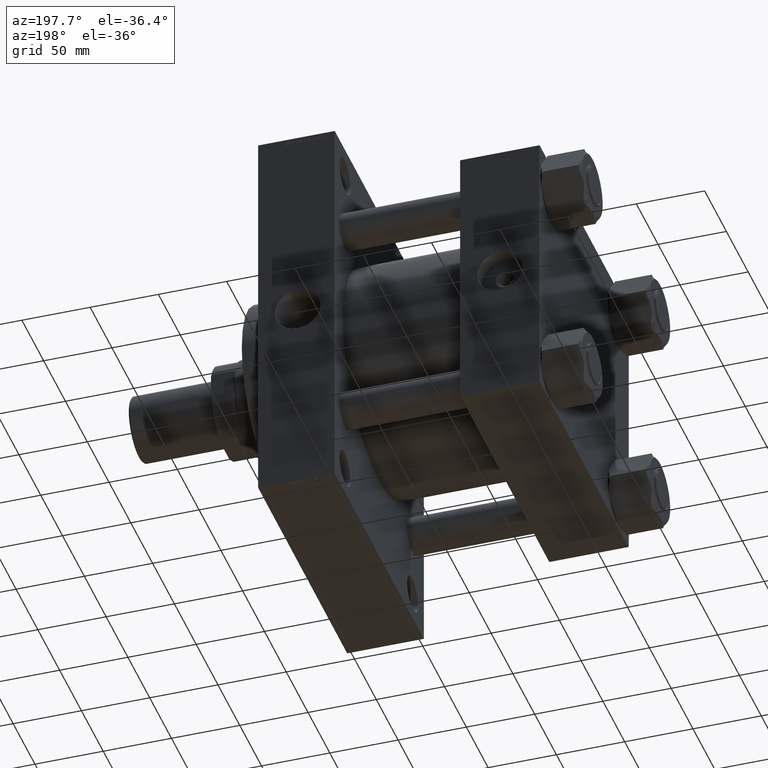
[diagram: clean part render]
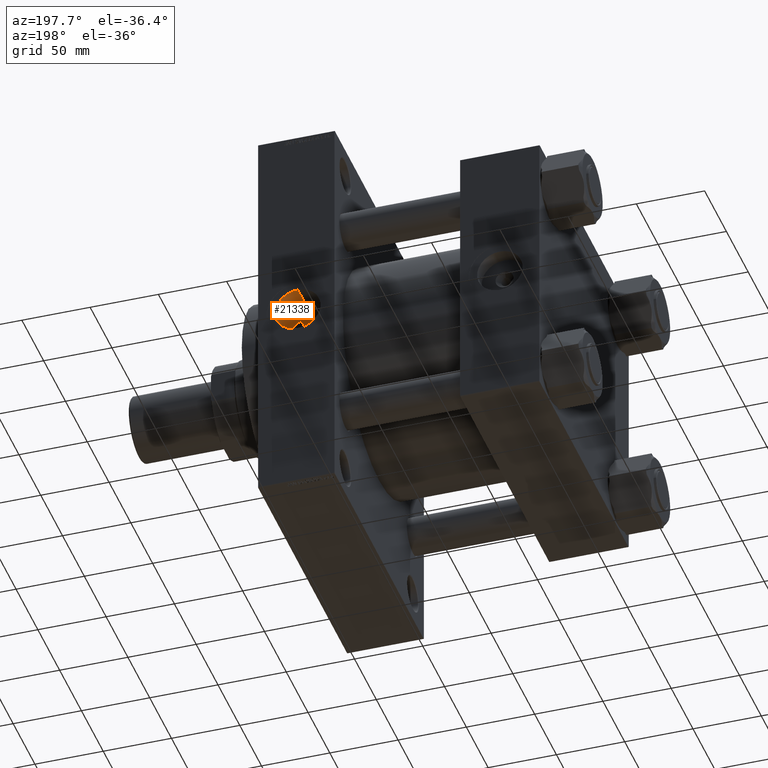
[diagram: same view with one face highlighted and labeled with its STEP entity id]
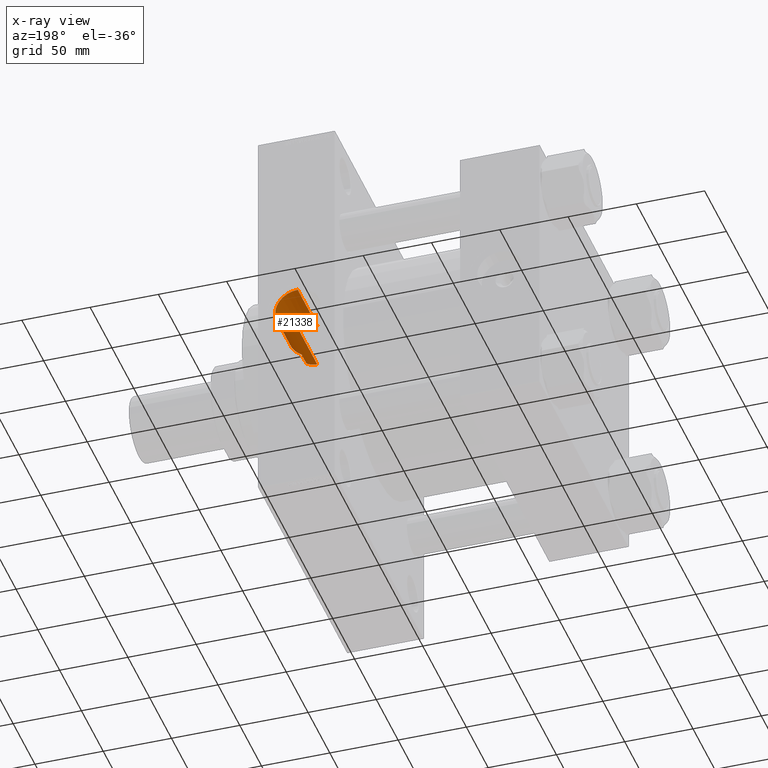
[diagram: x-ray of the same camera — body ghosted, the highlighted face saturated]
A machine part, auxiliary view. The second image highlights one B-rep face of the part: STEP entity #21338.
The next image is the same camera in x-ray: the body ghosted, the highlighted face saturated — about 2% of this face is hidden behind the body in this view.
In plain terms, the highlighted cylindrical surface (edge-blend (fillet) strip) has radius 16.62 mm, axis along (0, 1, 0).
Its self-contained STEP definition (entity closure, byte-faithful):
#319 = ORIENTED_EDGE ( 'NONE', *, *, #1924, .T. ) ;
#547 = DIRECTION ( 'NONE',  ( 0.000000000000000000, -1.000000000000000000, 0.000000000000000000 ) ) ;
#590 = VERTEX_POINT ( 'NONE', #22818 ) ;
#724 = CARTESIAN_POINT ( 'NONE',  ( 178.3491862534768018, 57.66699977446624104, 16.56857246349879276 ) ) ;
#1049 = DIRECTION ( 'NONE',  ( 0.000000000000000000, 0.000000000000000000, 1.000000000000000000 ) ) ;
#1202 = CARTESIAN_POINT ( 'NONE',  ( 177.0000000000000000, 102.2999999999999972, 16.62000000000000810 ) ) ;
#1924 = EDGE_CURVE ( 'NONE', #590, #30641, #34573, .T. ) ;
#2053 = CARTESIAN_POINT ( 'NONE',  ( 183.5465833610245454, 58.01063976927609644, -15.33575315849308041 ) ) ;
#2463 = EDGE_CURVE ( 'NONE', #2753, #13559, #42770, .T. ) ;
#2533 = CARTESIAN_POINT ( 'NONE',  ( 184.7399999999999807, 58.16943527317416596, -14.70771226261924092 ) ) ;
#2655 = VERTEX_POINT ( 'NONE', #26935 ) ;
#2753 = VERTEX_POINT ( 'NONE', #24247 ) ;
#3258 = CARTESIAN_POINT ( 'NONE',  ( 177.6692961842092870, 57.65219510131421998, -16.62000000000000455 ) ) ;
#3891 = EDGE_CURVE ( 'NONE', #30641, #13559, #41473, .T. ) ;
#3935 = B_SPLINE_CURVE_WITH_KNOTS ( 'NONE', 3,
 ( #2533, #2053, #38824, #13743, #24482, #28607, #10090, #44392, #3258, #10575 ),
 .UNSPECIFIED., .F., .F.,
 ( 4, 2, 2, 2, 4 ),
 ( 0.000000000000000000, 0.004017466377352936144, 0.005021832971691148929, 0.006026199566029361715, 0.008034932754705785551 ),
 .UNSPECIFIED. ) ;
#3964 = ORIENTED_EDGE ( 'NONE', *, *, #10623, .F. ) ;
#4366 = CARTESIAN_POINT ( 'NONE',  ( 177.0000000000000000, 102.2999999999999972, -16.62000000000000810 ) ) ;
#4374 = ORIENTED_EDGE ( 'NONE', *, *, #40986, .F. ) ;
#5316 = DIRECTION ( 'NONE',  ( -0.000000000000000000, 1.000000000000000000, -0.000000000000000000 ) ) ;
#5356 = EDGE_LOOP ( 'NONE', ( #15417, #3964, #16473, #4374, #7917, #20575, #319, #42173 ) ) ;
#5836 = B_SPLINE_CURVE_WITH_KNOTS ( 'NONE', 3,
 ( #21869, #7241, #6756, #14791, #10175, #29167, #21628, #48112, #29642, #9930, #24799, #22099, #14314, #47870, #25048, #39866, #39623, #18441, #6275, #6520, #32810, #36931, #10659, #32574, #21388, #14546, #40340, #35979, #36217, #17730, #7008, #47399, #29401, #44235 ),
 .UNSPECIFIED., .F., .F.,
 ( 4, 2, 2, 2, 2, 2, 2, 2, 2, 2, 2, 2, 2, 2, 2, 2, 4 ),
 ( 0.000000000000000000, 0.004508522888972438247, 0.006762784333458657371, 0.009017045777944876495, 0.01127130722243109562, 0.01352556866691731474, 0.01577983011140353733, 0.01803409155588975646, 0.02028835300037597905, 0.02254261444486220511, 0.02705113733383462601, 0.02817826805607775639, 0.02930539877832088677, 0.03155966022280708855, 0.03268679094505019117, 0.03381392166729329379, 0.03606818311177949210 ),
 .UNSPECIFIED. ) ;
#6275 = CARTESIAN_POINT ( 'NONE',  ( 193.2142116015326678, 70.90583042385527790, -3.728431881692176209 ) ) ;
#6520 = CARTESIAN_POINT ( 'NONE',  ( 192.6023799971717096, 70.76759132911853101, -5.924524204241102154 ) ) ;
#6746 = VERTEX_POINT ( 'NONE', #15835 ) ;
#6756 = CARTESIAN_POINT ( 'NONE',  ( 187.2971893418557272, 69.78284928851833513, 13.13172399391044287 ) ) ;
#7008 = CARTESIAN_POINT ( 'NONE',  ( 186.9766662103949955, 69.74393692943259282, -13.29787414215144814 ) ) ;
#7241 = CARTESIAN_POINT ( 'NONE',  ( 186.0826766350609489, 69.60955551684848785, 14.00112261972935457 ) ) ;
#7802 = CARTESIAN_POINT ( 'NONE',  ( 181.6313554768285030, 57.83430918113766950, 15.97561446533017637 ) ) ;
#7917 = ORIENTED_EDGE ( 'NONE', *, *, #17440, .T. ) ;
#9930 = CARTESIAN_POINT ( 'NONE',  ( 192.5508820853775660, 70.75675613569320888, 5.913646735051125702 ) ) ;
#10090 = CARTESIAN_POINT ( 'NONE',  ( 179.3439586347203658, 57.69885310890465746, -16.45734334866246229 ) ) ;
#10175 = CARTESIAN_POINT ( 'NONE',  ( 189.4533518682327440, 70.14019276680926396, 11.03183243013188886 ) ) ;
#10352 = LINE ( 'NONE', #13293, #33452 ) ;
#10575 = CARTESIAN_POINT ( 'NONE',  ( 177.0000000000000000, 57.65219510131421998, -16.62000000000000810 ) ) ;
#10623 = EDGE_CURVE ( 'NONE', #6746, #2753, #3935, .T. ) ;
#10659 = CARTESIAN_POINT ( 'NONE',  ( 190.8269659842880230, 70.39826265942890871, -9.229408405136270588 ) ) ;
#11454 = CARTESIAN_POINT ( 'NONE',  ( 179.6796464547889798, 57.71061845247022148, 16.41620055496920827 ) ) ;
#13293 = CARTESIAN_POINT ( 'NONE',  ( 184.7399999999999807, -47.00845881328174869, -14.70771226261924092 ) ) ;
#13559 = VERTEX_POINT ( 'NONE', #4366 ) ;
#13743 = CARTESIAN_POINT ( 'NONE',  ( 180.6731185707931786, 57.76817567684280164, -16.21249160251721477 ) ) ;
#14314 = CARTESIAN_POINT ( 'NONE',  ( 193.3600055548321848, 70.93951840790813890, 3.023938055570215333 ) ) ;
#14534 = VERTEX_POINT ( 'NONE', #30928 ) ;
#14546 = CARTESIAN_POINT ( 'NONE',  ( 189.4616928897196715, 70.14168166032750662, -11.02232931214016531 ) ) ;
#14791 = CARTESIAN_POINT ( 'NONE',  ( 188.9357495546952066, 70.04960602353817478, 11.58985562533721314 ) ) ;
#15112 = CARTESIAN_POINT ( 'NONE',  ( 177.6766523810055105, 57.65518552469012548, 16.60963691897149985 ) ) ;
#15417 = ORIENTED_EDGE ( 'NONE', *, *, #2463, .F. ) ;
#15835 = CARTESIAN_POINT ( 'NONE',  ( 184.7399999999999807, 58.16943527317416596, -14.70771226261924092 ) ) ;
#16473 = ORIENTED_EDGE ( 'NONE', *, *, #43580, .T. ) ;
#16513 = CARTESIAN_POINT ( 'NONE',  ( 177.0000000000000000, -47.00845881328174869, -16.62000000000000810 ) ) ;
#16825 = VECTOR ( 'NONE', #17227, 1000.000000000000000 ) ;
#17103 = VECTOR ( 'NONE', #27057, 1000.000000000000000 ) ;
#17227 = DIRECTION ( 'NONE',  ( -0.000000000000000000, 1.000000000000000000, -0.000000000000000000 ) ) ;
#17440 = EDGE_CURVE ( 'NONE', #14534, #2655, #30038, .T. ) ;
#17730 = CARTESIAN_POINT ( 'NONE',  ( 187.2773035509906379, 69.78765058975531588, -13.06686595568697662 ) ) ;
#18441 = CARTESIAN_POINT ( 'NONE',  ( 193.3667111892908395, 70.94106784652569786, -2.986680535465743080 ) ) ;
#20575 = ORIENTED_EDGE ( 'NONE', *, *, #35289, .F. ) ;
#20896 = FACE_OUTER_BOUND ( 'NONE', #5356, .T. ) ;
#21338 = ADVANCED_FACE ( 'NONE', ( #20896 ), #46920, .F. ) ;
#21388 = CARTESIAN_POINT ( 'NONE',  ( 190.1674756247729761, 70.27164821920894155, -10.14801798169221669 ) ) ;
#21628 = CARTESIAN_POINT ( 'NONE',  ( 190.8259858038267396, 70.39736800401423977, 9.253407364363331666 ) ) ;
#21869 = CARTESIAN_POINT ( 'NONE',  ( 184.7399999999999807, 69.45993953351816685, 14.70771226261924092 ) ) ;
#22099 = CARTESIAN_POINT ( 'NONE',  ( 193.2067481583777635, 70.90412868295645410, 3.758781717697047497 ) ) ;
#22187 = CARTESIAN_POINT ( 'NONE',  ( 177.3371789113071770, 57.65219510131421288, 16.62000000000001165 ) ) ;
#22818 = CARTESIAN_POINT ( 'NONE',  ( 177.0000000000000000, 57.65219510131421998, 16.62000000000000810 ) ) ;
#23402 = CARTESIAN_POINT ( 'NONE',  ( 177.0000000000000000, -47.00845881328174869, 16.62000000000000810 ) ) ;
#23904 = VECTOR ( 'NONE', #547, 1000.000000000000000 ) ;
#24247 = CARTESIAN_POINT ( 'NONE',  ( 177.0000000000000000, 57.65219510131421998, -16.62000000000000810 ) ) ;
#24482 = CARTESIAN_POINT ( 'NONE',  ( 180.3444673070186468, 57.74816914919828292, -16.28351950560894323 ) ) ;
#24799 = CARTESIAN_POINT ( 'NONE',  ( 192.8022309587733787, 70.81276213857627511, 5.203520211929327566 ) ) ;
#25048 = CARTESIAN_POINT ( 'NONE',  ( 193.6196186476274761, 70.99991073132846964, 0.7636257328791049570 ) ) ;
#25856 = CARTESIAN_POINT ( 'NONE',  ( 184.7399999999999807, 58.16943527317416596, 14.70771226261924092 ) ) ;
#26408 = CARTESIAN_POINT ( 'NONE',  ( 177.0000000000000000, 102.2999999999999972, 0.000000000000000000 ) ) ;
#26738 = AXIS2_PLACEMENT_3D ( 'NONE', #26408, #45595, #1049 ) ;
#26935 = CARTESIAN_POINT ( 'NONE',  ( 184.7399999999999807, 58.16943527317416596, 14.70771226261924092 ) ) ;
#27057 = DIRECTION ( 'NONE',  ( -0.000000000000000000, 1.000000000000000000, -0.000000000000000000 ) ) ;
#27981 = AXIS2_PLACEMENT_3D ( 'NONE', #32094, #5316, #38433 ) ;
#28607 = CARTESIAN_POINT ( 'NONE',  ( 179.6801726513483288, 57.71350711885158802, -16.40594842172277623 ) ) ;
#29167 = CARTESIAN_POINT ( 'NONE',  ( 190.3966800590692969, 70.31380878046792304, 9.864900552740609285 ) ) ;
#29401 = CARTESIAN_POINT ( 'NONE',  ( 185.4113006263310410, 69.53474332521015810, -14.35443727633822064 ) ) ;
#29642 = CARTESIAN_POINT ( 'NONE',  ( 191.9467621175651288, 70.62644195350438281, 7.307219275566986916 ) ) ;
#29733 = CARTESIAN_POINT ( 'NONE',  ( 182.2724080284943966, 57.88938753486414157, 15.77593724673129927 ) ) ;
#30038 = LINE ( 'NONE', #33441, #23904 ) ;
#30641 = VERTEX_POINT ( 'NONE', #1202 ) ;
#30695 = CARTESIAN_POINT ( 'NONE',  ( 178.6833466732528848, 57.67581035653797983, 16.53791644747176903 ) ) ;
#30928 = CARTESIAN_POINT ( 'NONE',  ( 184.7399999999999807, 69.45993953351816685, 14.70771226261924092 ) ) ;
#32094 = CARTESIAN_POINT ( 'NONE',  ( 177.0000000000000000, -47.00845881328174869, 0.000000000000000000 ) ) ;
#32574 = CARTESIAN_POINT ( 'NONE',  ( 190.3935599034559516, 70.31442130902271970, -9.847818080772729132 ) ) ;
#32810 = CARTESIAN_POINT ( 'NONE',  ( 192.0069827197220320, 70.63571323170191363, -7.299544913496854193 ) ) ;
#33441 = CARTESIAN_POINT ( 'NONE',  ( 184.7399999999999807, -47.00845881328174869, 14.70771226261924092 ) ) ;
#33452 = VECTOR ( 'NONE', #36149, 1000.000000000000000 ) ;
#34094 = CARTESIAN_POINT ( 'NONE',  ( 177.0000000000000000, 57.65219510131421998, 16.62000000000000810 ) ) ;
#34573 = LINE ( 'NONE', #23402, #17103 ) ;
#35260 = B_SPLINE_CURVE_WITH_KNOTS ( 'NONE', 3,
 ( #34094, #22187, #15112, #724, #30695, #11454, #45516, #7802, #29733, #44558, #37991, #25856 ),
 .UNSPECIFIED., .F., .F.,
 ( 4, 2, 2, 2, 2, 4 ),
 ( 0.06027706934855334153, 0.06127877056702252245, 0.06228047178549171031, 0.06428387422243007909, 0.06628727665936844093, 0.06829067909630681665 ),
 .UNSPECIFIED. ) ;
#35289 = EDGE_CURVE ( 'NONE', #590, #2655, #35260, .T. ) ;
#35979 = CARTESIAN_POINT ( 'NONE',  ( 188.1390879916318966, 69.91983232600487952, -12.34037716306846200 ) ) ;
#36149 = DIRECTION ( 'NONE',  ( -0.000000000000000000, 1.000000000000000000, -0.000000000000000000 ) ) ;
#36217 = CARTESIAN_POINT ( 'NONE',  ( 187.8580774013339010, 69.87553972179343020, -12.58841170798522313 ) ) ;
#36931 = CARTESIAN_POINT ( 'NONE',  ( 191.0340367002231119, 70.43928921021836231, -8.911340768379186983 ) ) ;
#37991 = CARTESIAN_POINT ( 'NONE',  ( 184.1447394831498343, 58.09023016522044003, 15.02097079787969136 ) ) ;
#38433 = DIRECTION ( 'NONE',  ( 0.000000000000000000, 0.000000000000000000, 1.000000000000000000 ) ) ;
#38712 = VERTEX_POINT ( 'NONE', #45680 ) ;
#38824 = CARTESIAN_POINT ( 'NONE',  ( 182.2993518161282225, 57.88068991985630163, -15.80942169333366465 ) ) ;
#39623 = CARTESIAN_POINT ( 'NONE',  ( 193.5695080118320845, 70.98812906258251587, -1.496963600232728009 ) ) ;
#39866 = CARTESIAN_POINT ( 'NONE',  ( 193.6203771617156519, 71.00008828770373270, -0.7469345719697262354 ) ) ;
#40340 = CARTESIAN_POINT ( 'NONE',  ( 188.9545938296965346, 70.05283861827652458, -11.57027422386249960 ) ) ;
#40986 = EDGE_CURVE ( 'NONE', #14534, #38712, #5836, .T. ) ;
#41473 = CIRCLE ( 'NONE', #26738, 16.62000000000000810 ) ;
#42173 = ORIENTED_EDGE ( 'NONE', *, *, #3891, .T. ) ;
#42770 = LINE ( 'NONE', #16513, #16825 ) ;
#43580 = EDGE_CURVE ( 'NONE', #6746, #38712, #10352, .T. ) ;
#44235 = CARTESIAN_POINT ( 'NONE',  ( 184.7399999999999807, 69.45993953351816685, -14.70771226261924092 ) ) ;
#44392 = CARTESIAN_POINT ( 'NONE',  ( 178.3389447269537698, 57.66385353918463608, -16.57972242609444535 ) ) ;
#44558 = CARTESIAN_POINT ( 'NONE',  ( 183.5322703209921826, 58.01769952600040625, 15.29731763693296642 ) ) ;
#45516 = CARTESIAN_POINT ( 'NONE',  ( 180.3356249150639883, 57.74499336289397888, 16.29549991634563000 ) ) ;
#45595 = DIRECTION ( 'NONE',  ( 0.000000000000000000, 1.000000000000000000, 0.000000000000000000 ) ) ;
#45680 = CARTESIAN_POINT ( 'NONE',  ( 184.7399999999999807, 69.45993953351816685, -14.70771226261924092 ) ) ;
#46920 = CYLINDRICAL_SURFACE ( 'NONE', #27981, 16.62000000000000810 ) ;
#47399 = CARTESIAN_POINT ( 'NONE',  ( 186.0541977627191841, 69.61596926064136426, -13.95770770470995714 ) ) ;
#47870 = CARTESIAN_POINT ( 'NONE',  ( 193.5667411468214993, 70.98748060339646315, 1.528748145470051334 ) ) ;
#48112 = CARTESIAN_POINT ( 'NONE',  ( 191.6010204607543699, 70.55367699092909106, 7.974561605699997280 ) ) ;